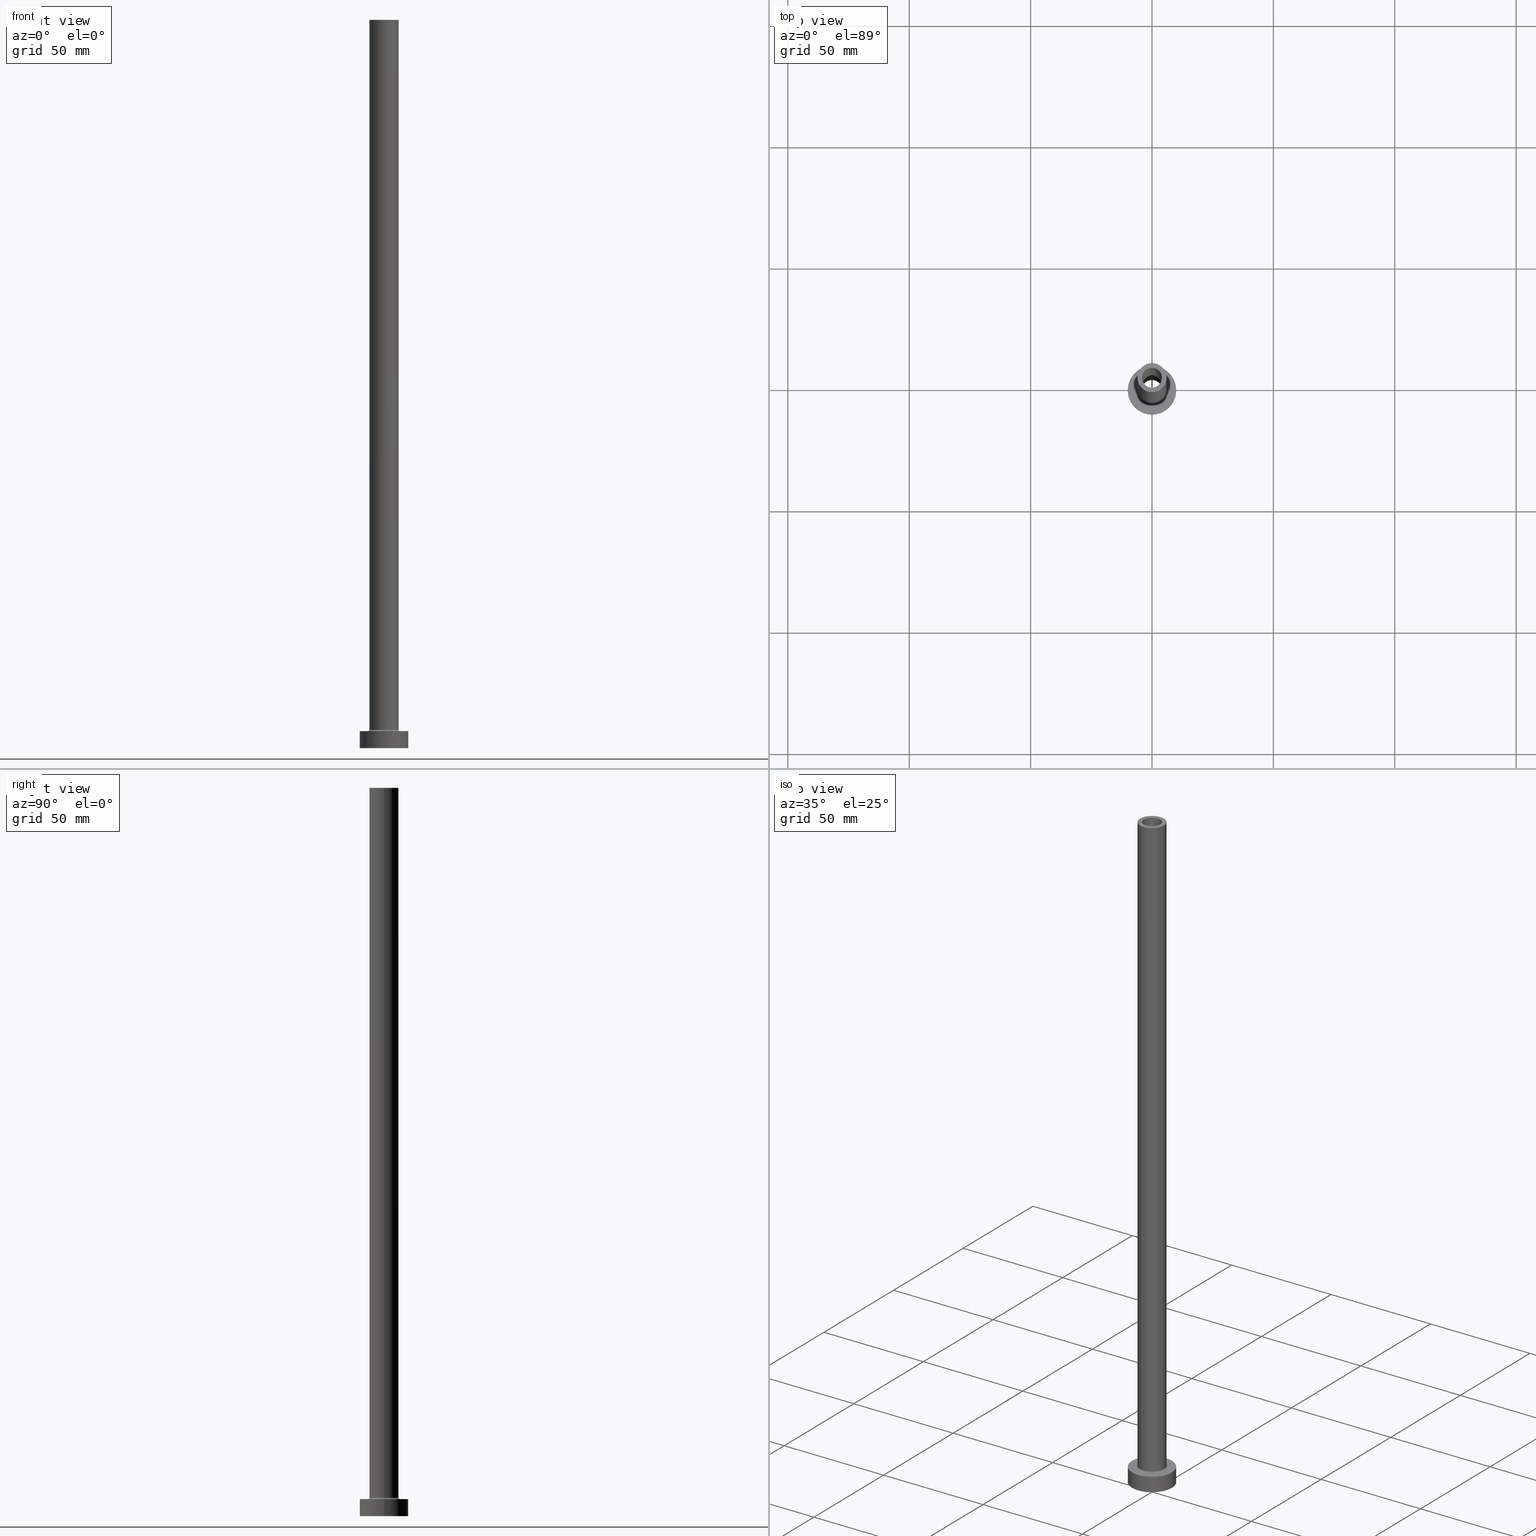
[diagram: canonical four-view strip — front | top / right | iso, engineering-drawing reading convention]
A machine part, canonical four-view strip (front | top / right | iso — engineering-drawing reading convention). The complete STEP part file that produces these views, byte-faithful:
ISO-10303-21;
HEADER;
FILE_DESCRIPTION (( 'STEP AP203' ),
    '1' );
FILE_NAME ('ae99.STEP',
    '2023-02-13T07:40:03',
    ( '' ),
    ( '' ),
    'SwSTEP 2.0',
    'SolidWorks 2019',
    '' );
FILE_SCHEMA (( 'CONFIG_CONTROL_DESIGN' ));
ENDSEC;

DATA;
#1 = MECHANICAL_CONTEXT ( 'NONE', #113, 'mechanical' ) ;
#2 = CIRCLE ( 'NONE', #103, 10.00000000000000000 ) ;
#3 = ORIENTED_EDGE ( 'NONE', *, *, #306, .F. ) ;
#4 = DIRECTION ( 'NONE',  ( -0.000000000000000000, -0.000000000000000000, -1.000000000000000000 ) ) ;
#5 = DIRECTION ( 'NONE',  ( -0.000000000000000000, -0.000000000000000000, -1.000000000000000000 ) ) ;
#6 = VERTEX_POINT ( 'NONE', #71 ) ;
#7 = DIRECTION ( 'NONE',  ( -0.000000000000000000, -0.000000000000000000, -1.000000000000000000 ) ) ;
#8 = ADVANCED_FACE ( 'NONE', ( #422 ), #386, .T. ) ;
#9 = DIRECTION ( 'NONE',  ( 1.000000000000000000, 0.000000000000000000, 0.000000000000000000 ) ) ;
#10 = ADVANCED_FACE ( 'NONE', ( #182, #324 ), #147, .F. ) ;
#11 = PRODUCT_DEFINITION_FORMATION_WITH_SPECIFIED_SOURCE ( 'LIBOVOLN�', '', #278, .NOT_KNOWN. ) ;
#12 = AXIS2_PLACEMENT_3D ( 'NONE', #449, #136, #411 ) ;
#13 =( NAMED_UNIT ( * ) SI_UNIT ( $, .STERADIAN. ) SOLID_ANGLE_UNIT ( ) );
#14 = CARTESIAN_POINT ( 'NONE',  ( 6.000000000000000888, 7.347880794884120722E-16, 7.699999999999985079 ) ) ;
#15 = DIRECTION ( 'NONE',  ( 0.000000000000000000, 0.000000000000000000, -1.000000000000000000 ) ) ;
#16 = EDGE_CURVE ( 'NONE', #452, #321, #212, .T. ) ;
#17 = LINE ( 'NONE', #86, #261 ) ;
#18 = APPROVAL_DATE_TIME ( #454, #217 ) ;
#19 = AXIS2_PLACEMENT_3D ( 'NONE', #399, #304, #440 ) ;
#20 = CARTESIAN_POINT ( 'NONE',  ( 0.000000000000000000, 0.000000000000000000, 0.000000000000000000 ) ) ;
#21 = DIRECTION ( 'NONE',  ( -1.000000000000000000, 0.000000000000000000, 0.000000000000000000 ) ) ;
#22 = DATE_TIME_ROLE ( 'classification_date' ) ;
#23 = EDGE_CURVE ( 'NONE', #6, #43, #442, .T. ) ;
#24 = EDGE_LOOP ( 'NONE', ( #143, #381, #283, #162 ) ) ;
#25 = ADVANCED_FACE ( 'NONE', ( #194, #26 ), #169, .T. ) ;
#26 = FACE_OUTER_BOUND ( 'NONE', #296, .T. ) ;
#27 = CARTESIAN_POINT ( 'NONE',  ( -10.00000000000000000, 0.000000000000000000, 0.000000000000000000 ) ) ;
#28 = EDGE_LOOP ( 'NONE', ( #280, #67 ) ) ;
#29 = CIRCLE ( 'NONE', #322, 4.250000000000000000 ) ;
#30 = APPROVAL_STATUS ( 'not_yet_approved' ) ;
#31 = AXIS2_PLACEMENT_3D ( 'NONE', #135, #191, #361 ) ;
#32 = ADVANCED_FACE ( 'NONE', ( #373 ), #257, .F. ) ;
#33 = EDGE_CURVE ( 'NONE', #347, #274, #377, .T. ) ;
#34 = EDGE_LOOP ( 'NONE', ( #417, #253 ) ) ;
#35 = AXIS2_PLACEMENT_3D ( 'NONE', #360, #15, #299 ) ;
#36 = CIRCLE ( 'NONE', #126, 0.7000000000000000666 ) ;
#37 = VECTOR ( 'NONE', #236, 1000.000000000000000 ) ;
#38 = DIRECTION ( 'NONE',  ( -1.000000000000000000, 0.000000000000000000, 0.000000000000000000 ) ) ;
#39 = AXIS2_PLACEMENT_3D ( 'NONE', #425, #167, #277 ) ;
#40 = DIRECTION ( 'NONE',  ( 1.000000000000000000, 0.000000000000000000, 0.000000000000000000 ) ) ;
#41 = DIRECTION ( 'NONE',  ( -1.000000000000000000, 0.000000000000000000, 0.000000000000000000 ) ) ;
#42 = APPLICATION_PROTOCOL_DEFINITION ( 'international standard', 'config_control_design', 1994, #113 ) ;
#43 = VERTEX_POINT ( 'NONE', #279 ) ;
#44 = LOCAL_TIME ( 8, 40, 3.000000000000000000, #202 ) ;
#45 = ORIENTED_EDGE ( 'NONE', *, *, #368, .F. ) ;
#46 = DIRECTION ( 'NONE',  ( 1.000000000000000000, 0.000000000000000000, 0.000000000000000000 ) ) ;
#47 = DIRECTION ( 'NONE',  ( -0.000000000000000000, -0.000000000000000000, -1.000000000000000000 ) ) ;
#48 = DIRECTION ( 'NONE',  ( 0.000000000000000000, 0.000000000000000000, 1.000000000000000000 ) ) ;
#49 = ORIENTED_EDGE ( 'NONE', *, *, #342, .T. ) ;
#50 = PERSON_AND_ORGANIZATION_ROLE ( 'creator' ) ;
#51 = AXIS2_PLACEMENT_3D ( 'NONE', #116, #109, #426 ) ;
#52 = CARTESIAN_POINT ( 'NONE',  ( 0.000000000000000000, 0.000000000000000000, 0.000000000000000000 ) ) ;
#53 = PERSON_AND_ORGANIZATION_ROLE ( 'design_supplier' ) ;
#54 = FACE_BOUND ( 'NONE', #28, .T. ) ;
#55 = CARTESIAN_POINT ( 'NONE',  ( -4.250000000000000000, 0.000000000000000000, 0.000000000000000000 ) ) ;
#56 = AXIS2_PLACEMENT_3D ( 'NONE', #294, #431, #9 ) ;
#57 = DIRECTION ( 'NONE',  ( 0.000000000000000000, 0.000000000000000000, 1.000000000000000000 ) ) ;
#58 = CC_DESIGN_PERSON_AND_ORGANIZATION_ASSIGNMENT ( #164, #50, ( #11 ) ) ;
#59 = AXIS2_PLACEMENT_3D ( 'NONE', #441, #131, #249 ) ;
#60 = ORIENTED_EDGE ( 'NONE', *, *, #165, .F. ) ;
#61 = ORIENTED_EDGE ( 'NONE', *, *, #450, .F. ) ;
#62 = CALENDAR_DATE ( 2023, 13, 2 ) ;
#63 = ORIENTED_EDGE ( 'NONE', *, *, #146, .F. ) ;
#64 = VERTEX_POINT ( 'NONE', #369 ) ;
#65 = VERTEX_POINT ( 'NONE', #338 ) ;
#66 = COORDINATED_UNIVERSAL_TIME_OFFSET ( 1, 0, .AHEAD. ) ;
#67 = ORIENTED_EDGE ( 'NONE', *, *, #387, .F. ) ;
#68 = VERTEX_POINT ( 'NONE', #55 ) ;
#69 = CARTESIAN_POINT ( 'NONE',  ( 0.000000000000000000, 0.000000000000000000, 300.0000000000000000 ) ) ;
#70 = VERTEX_POINT ( 'NONE', #241 ) ;
#71 = CARTESIAN_POINT ( 'NONE',  ( 4.250000000000000000, 5.204748896376250699E-16, 255.0000000000000000 ) ) ;
#72 = EDGE_CURVE ( 'NONE', #396, #258, #170, .T. ) ;
#73 = CARTESIAN_POINT ( 'NONE',  ( -10.00000000000000000, 0.000000000000000000, 7.000000000000000000 ) ) ;
#74 = SECURITY_CLASSIFICATION ( '', '', #272 ) ;
#75 = CYLINDRICAL_SURFACE ( 'NONE', #302, 10.00000000000000000 ) ;
#76 = CARTESIAN_POINT ( 'NONE',  ( -4.099999999999999645, 0.000000000000000000, 255.0000000000000000 ) ) ;
#77 = VECTOR ( 'NONE', #435, 1000.000000000000000 ) ;
#78 = CYLINDRICAL_SURFACE ( 'NONE', #35, 4.250000000000000000 ) ;
#79 = EDGE_CURVE ( 'NONE', #274, #347, #224, .T. ) ;
#80 = AXIS2_PLACEMENT_3D ( 'NONE', #219, #48, #190 ) ;
#81 = CLOSED_SHELL ( 'NONE', ( #107, #270, #32, #395, #398, #260, #25, #10, #8, #286, #443, #142, #233, #206 ) ) ;
#82 = EDGE_LOOP ( 'NONE', ( #456, #172, #352, #63 ) ) ;
#83 = LINE ( 'NONE', #376, #37 ) ;
#84 = CYLINDRICAL_SURFACE ( 'NONE', #59, 10.00000000000000000 ) ;
#85 = APPROVAL_DATE_TIME ( #415, #285 ) ;
#86 = CARTESIAN_POINT ( 'NONE',  ( -6.000000000000000888, 0.000000000000000000, 300.0000000000000000 ) ) ;
#87 = FACE_OUTER_BOUND ( 'NONE', #319, .T. ) ;
#88 = DIRECTION ( 'NONE',  ( 0.000000000000000000, 0.000000000000000000, 1.000000000000000000 ) ) ;
#89 = CYLINDRICAL_SURFACE ( 'NONE', #153, 6.000000000000000888 ) ;
#90 = DIRECTION ( 'NONE',  ( 0.000000000000000000, 0.000000000000000000, 1.000000000000000000 ) ) ;
#91 = VECTOR ( 'NONE', #326, 1000.000000000000000 ) ;
#92 = EDGE_CURVE ( 'NONE', #43, #68, #291, .T. ) ;
#93 = CIRCLE ( 'NONE', #359, 6.000000000000000888 ) ;
#94 = PERSON_AND_ORGANIZATION ( #410, #364 ) ;
#95 = DIRECTION ( 'NONE',  ( 0.000000000000000000, 0.000000000000000000, -1.000000000000000000 ) ) ;
#96 = ORIENTED_EDGE ( 'NONE', *, *, #72, .F. ) ;
#97 = ORIENTED_EDGE ( 'NONE', *, *, #368, .T. ) ;
#98 = DIRECTION ( 'NONE',  ( 1.000000000000000000, 0.000000000000000000, 0.000000000000000000 ) ) ;
#99 = CALENDAR_DATE ( 2023, 13, 2 ) ;
#100 =( LENGTH_UNIT ( ) NAMED_UNIT ( * ) SI_UNIT ( .MILLI., .METRE. ) );
#101 = APPROVAL_STATUS ( 'not_yet_approved' ) ;
#102 = DIRECTION ( 'NONE',  ( 1.000000000000000000, 0.000000000000000000, 0.000000000000000000 ) ) ;
#103 = AXIS2_PLACEMENT_3D ( 'NONE', #227, #192, #157 ) ;
#104 = FACE_OUTER_BOUND ( 'NONE', #82, .T. ) ;
#105 = ORIENTED_EDGE ( 'NONE', *, *, #16, .T. ) ;
#106 = CARTESIAN_POINT ( 'NONE',  ( 0.000000000000000000, 0.000000000000000000, 255.0000000000000000 ) ) ;
#107 = ADVANCED_FACE ( 'NONE', ( #118 ), #215, .F. ) ;
#108 = PRODUCT_DEFINITION_SHAPE ( 'NONE', 'NONE',  #323 ) ;
#109 = DIRECTION ( 'NONE',  ( 0.000000000000000000, 0.000000000000000000, 1.000000000000000000 ) ) ;
#110 = ORIENTED_EDGE ( 'NONE', *, *, #92, .F. ) ;
#111 = CIRCLE ( 'NONE', #19, 4.099999999999999645 ) ;
#112 = AXIS2_PLACEMENT_3D ( 'NONE', #238, #90, #229 ) ;
#113 = APPLICATION_CONTEXT ( 'configuration controlled 3d designs of mechanical parts and assemblies' ) ;
#114 = DIRECTION ( 'NONE',  ( 0.000000000000000000, 0.000000000000000000, 1.000000000000000000 ) ) ;
#115 = ORIENTED_EDGE ( 'NONE', *, *, #366, .F. ) ;
#116 = CARTESIAN_POINT ( 'NONE',  ( 0.000000000000000000, 0.000000000000000000, 255.0000000000000000 ) ) ;
#117 = EDGE_CURVE ( 'NONE', #274, #385, #337, .T. ) ;
#118 = FACE_OUTER_BOUND ( 'NONE', #166, .T. ) ;
#119 = ORIENTED_EDGE ( 'NONE', *, *, #130, .F. ) ;
#120 = PERSON_AND_ORGANIZATION ( #410, #364 ) ;
#121 = AXIS2_PLACEMENT_3D ( 'NONE', #106, #316, #414 ) ;
#122 = DIRECTION ( 'NONE',  ( 1.000000000000000000, 0.000000000000000000, 0.000000000000000000 ) ) ;
#123 = PRODUCT_RELATED_PRODUCT_CATEGORY ( 'detail', '', ( #278 ) ) ;
#124 = LINE ( 'NONE', #266, #91 ) ;
#125 = LINE ( 'NONE', #328, #77 ) ;
#126 = AXIS2_PLACEMENT_3D ( 'NONE', #183, #184, #209 ) ;
#127 = AXIS2_PLACEMENT_3D ( 'NONE', #365, #197, #404 ) ;
#128 = EDGE_LOOP ( 'NONE', ( #339, #349, #207, #213 ) ) ;
#129 = FACE_OUTER_BOUND ( 'NONE', #336, .T. ) ;
#130 = EDGE_CURVE ( 'NONE', #321, #452, #309, .T. ) ;
#131 = DIRECTION ( 'NONE',  ( -0.000000000000000000, -0.000000000000000000, -1.000000000000000000 ) ) ;
#132 = PERSON_AND_ORGANIZATION ( #410, #364 ) ;
#133 = DIRECTION ( 'NONE',  ( 0.000000000000000000, 0.000000000000000000, 1.000000000000000000 ) ) ;
#134 = APPROVAL_PERSON_ORGANIZATION ( #132, #217, #163 ) ;
#135 = CARTESIAN_POINT ( 'NONE',  ( 0.000000000000000000, 0.000000000000000000, 7.699999999999985079 ) ) ;
#136 = DIRECTION ( 'NONE',  ( 0.000000000000000000, 0.000000000000000000, 1.000000000000000000 ) ) ;
#137 = CYLINDRICAL_SURFACE ( 'NONE', #312, 4.250000000000000000 ) ;
#138 = VERTEX_POINT ( 'NONE', #300 ) ;
#139 = CARTESIAN_POINT ( 'NONE',  ( 0.000000000000000000, 0.000000000000000000, 300.0000000000000000 ) ) ;
#140 = ORIENTED_EDGE ( 'NONE', *, *, #145, .T. ) ;
#141 = CC_DESIGN_SECURITY_CLASSIFICATION ( #74, ( #11 ) ) ;
#142 = ADVANCED_FACE ( 'NONE', ( #87 ), #78, .F. ) ;
#143 = ORIENTED_EDGE ( 'NONE', *, *, #358, .F. ) ;
#144 = CARTESIAN_POINT ( 'NONE',  ( 0.000000000000000000, 0.000000000000000000, 7.000000000000000000 ) ) ;
#145 = EDGE_CURVE ( 'NONE', #70, #68, #125, .T. ) ;
#146 = EDGE_CURVE ( 'NONE', #315, #385, #392, .T. ) ;
#147 = PLANE ( 'NONE',  #39 ) ;
#148 = DIRECTION ( 'NONE',  ( 1.000000000000000000, 0.000000000000000000, 0.000000000000000000 ) ) ;
#149 = UNCERTAINTY_MEASURE_WITH_UNIT (LENGTH_MEASURE( 1.000000000000000082E-05 ), #100, 'distance_accuracy_value', 'NONE');
#150 = ORIENTED_EDGE ( 'NONE', *, *, #262, .T. ) ;
#151 = DIRECTION ( 'NONE',  ( -1.000000000000000000, 0.000000000000000000, 0.000000000000000000 ) ) ;
#152 = CC_DESIGN_PERSON_AND_ORGANIZATION_ASSIGNMENT ( #282, #239, ( #323 ) ) ;
#153 = AXIS2_PLACEMENT_3D ( 'NONE', #228, #196, #21 ) ;
#154 = ORIENTED_EDGE ( 'NONE', *, *, #351, .F. ) ;
#155 = FACE_OUTER_BOUND ( 'NONE', #444, .T. ) ;
#156 = APPROVAL_ROLE ( '' ) ;
#157 = DIRECTION ( 'NONE',  ( 1.000000000000000000, 0.000000000000000000, 0.000000000000000000 ) ) ;
#158 = EDGE_CURVE ( 'NONE', #64, #274, #295, .T. ) ;
#159 = LOCAL_TIME ( 8, 40, 3.000000000000000000, #175 ) ;
#160 = CARTESIAN_POINT ( 'NONE',  ( 6.700000000000001066, 0.000000000000000000, 6.999999999999992006 ) ) ;
#161 = DIRECTION ( 'NONE',  ( -0.000000000000000000, -0.000000000000000000, -1.000000000000000000 ) ) ;
#162 = ORIENTED_EDGE ( 'NONE', *, *, #216, .F. ) ;
#163 = APPROVAL_ROLE ( '' ) ;
#164 = PERSON_AND_ORGANIZATION ( #410, #364 ) ;
#165 = EDGE_CURVE ( 'NONE', #138, #396, #124, .T. ) ;
#166 = EDGE_LOOP ( 'NONE', ( #246, #218, #3, #408 ) ) ;
#167 = DIRECTION ( 'NONE',  ( 0.000000000000000000, 0.000000000000000000, 1.000000000000000000 ) ) ;
#168 = APPROVAL_PERSON_ORGANIZATION ( #344, #285, #156 ) ;
#169 = PLANE ( 'NONE',  #112 ) ;
#170 = CIRCLE ( 'NONE', #430, 4.099999999999999645 ) ;
#171 = EDGE_LOOP ( 'NONE', ( #455, #372 ) ) ;
#172 = ORIENTED_EDGE ( 'NONE', *, *, #79, .F. ) ;
#173 = DATE_AND_TIME ( #62, #330 ) ;
#174 = ORIENTED_EDGE ( 'NONE', *, *, #366, .T. ) ;
#175 = COORDINATED_UNIVERSAL_TIME_OFFSET ( 1, 0, .AHEAD. ) ;
#176 = CARTESIAN_POINT ( 'NONE',  ( 0.000000000000000000, 0.000000000000000000, 255.0000000000000000 ) ) ;
#177 = CC_DESIGN_PERSON_AND_ORGANIZATION_ASSIGNMENT ( #94, #200, ( #74 ) ) ;
#178 = APPROVAL_STATUS ( 'not_yet_approved' ) ;
#179 = DIRECTION ( 'NONE',  ( 0.000000000000000000, 0.000000000000000000, -1.000000000000000000 ) ) ;
#180 = CIRCLE ( 'NONE', #409, 6.700000000000001066 ) ;
#181 = ORIENTED_EDGE ( 'NONE', *, *, #117, .F. ) ;
#182 = FACE_BOUND ( 'NONE', #223, .T. ) ;
#183 = CARTESIAN_POINT ( 'NONE',  ( -6.700000000000001066, 8.205133554287267548E-16, 7.699999999999985079 ) ) ;
#184 = DIRECTION ( 'NONE',  ( 1.224646799147353207E-16, 1.000000000000000000, -0.000000000000000000 ) ) ;
#185 = CARTESIAN_POINT ( 'NONE',  ( 0.000000000000000000, 0.000000000000000000, 7.000000000000000000 ) ) ;
#186 = FACE_OUTER_BOUND ( 'NONE', #389, .T. ) ;
#187 = AXIS2_PLACEMENT_3D ( 'NONE', #144, #114, #148 ) ;
#188 = EDGE_CURVE ( 'NONE', #459, #138, #320, .T. ) ;
#189 = DIRECTION ( 'NONE',  ( 0.000000000000000000, 0.000000000000000000, 1.000000000000000000 ) ) ;
#190 = DIRECTION ( 'NONE',  ( 1.000000000000000000, 0.000000000000000000, 0.000000000000000000 ) ) ;
#191 = DIRECTION ( 'NONE',  ( 0.000000000000000000, 0.000000000000000000, 1.000000000000000000 ) ) ;
#192 = DIRECTION ( 'NONE',  ( 0.000000000000000000, 0.000000000000000000, 1.000000000000000000 ) ) ;
#193 = CARTESIAN_POINT ( 'NONE',  ( 0.000000000000000000, 0.000000000000000000, 255.0000000000000000 ) ) ;
#194 = FACE_BOUND ( 'NONE', #34, .T. ) ;
#195 = CIRCLE ( 'NONE', #121, 4.250000000000000000 ) ;
#196 = DIRECTION ( 'NONE',  ( -0.000000000000000000, -0.000000000000000000, -1.000000000000000000 ) ) ;
#197 = DIRECTION ( 'NONE',  ( 0.000000000000000000, 0.000000000000000000, 1.000000000000000000 ) ) ;
#198 = ORIENTED_EDGE ( 'NONE', *, *, #354, .F. ) ;
#199 = CC_DESIGN_PERSON_AND_ORGANIZATION_ASSIGNMENT ( #436, #53, ( #11 ) ) ;
#200 = PERSON_AND_ORGANIZATION_ROLE ( 'classification_officer' ) ;
#201 = DATE_TIME_ROLE ( 'creation_date' ) ;
#202 = COORDINATED_UNIVERSAL_TIME_OFFSET ( 1, 0, .AHEAD. ) ;
#203 = COORDINATED_UNIVERSAL_TIME_OFFSET ( 1, 0, .AHEAD. ) ;
#204 = ORIENTED_EDGE ( 'NONE', *, *, #158, .T. ) ;
#205 = ORIENTED_EDGE ( 'NONE', *, *, #317, .F. ) ;
#206 = ADVANCED_FACE ( 'NONE', ( #186 ), #252, .F. ) ;
#207 = ORIENTED_EDGE ( 'NONE', *, *, #92, .T. ) ;
#208 = VERTEX_POINT ( 'NONE', #73 ) ;
#209 = DIRECTION ( 'NONE',  ( -1.000000000000000000, 1.224646799147353454E-16, 0.000000000000000000 ) ) ;
#210 = AXIS2_PLACEMENT_3D ( 'NONE', #243, #382, #251 ) ;
#211 = CIRCLE ( 'NONE', #187, 10.00000000000000000 ) ;
#212 = CIRCLE ( 'NONE', #12, 10.00000000000000000 ) ;
#213 = ORIENTED_EDGE ( 'NONE', *, *, #145, .F. ) ;
#214 = CARTESIAN_POINT ( 'NONE',  ( 0.000000000000000000, 0.000000000000000000, 300.0000000000000000 ) ) ;
#215 = CYLINDRICAL_SURFACE ( 'NONE', #230, 4.099999999999999645 ) ;
#216 = EDGE_CURVE ( 'NONE', #208, #452, #289, .T. ) ;
#217 = APPROVAL ( #101, 'NEUR�EN�' ) ;
#218 = ORIENTED_EDGE ( 'NONE', *, *, #165, .T. ) ;
#219 = CARTESIAN_POINT ( 'NONE',  ( 0.000000000000000000, 0.000000000000000000, 0.000000000000000000 ) ) ;
#220 = EDGE_CURVE ( 'NONE', #347, #315, #36, .T. ) ;
#221 = DIRECTION ( 'NONE',  ( -1.000000000000000000, 0.000000000000000000, 0.000000000000000000 ) ) ;
#222 = APPROVAL_PERSON_ORGANIZATION ( #447, #232, #412 ) ;
#223 = EDGE_LOOP ( 'NONE', ( #205, #110 ) ) ;
#224 = CIRCLE ( 'NONE', #31, 6.000000000000000888 ) ;
#225 = CARTESIAN_POINT ( 'NONE',  ( 10.00000000000000000, 1.224646799147353256E-15, 7.000000000000000000 ) ) ;
#226 = CARTESIAN_POINT ( 'NONE',  ( 6.000000000000000888, 7.347880794884120722E-16, 300.0000000000000000 ) ) ;
#227 = CARTESIAN_POINT ( 'NONE',  ( 0.000000000000000000, 0.000000000000000000, 7.000000000000000000 ) ) ;
#228 = CARTESIAN_POINT ( 'NONE',  ( 0.000000000000000000, 0.000000000000000000, 300.0000000000000000 ) ) ;
#229 = DIRECTION ( 'NONE',  ( 1.000000000000000000, 0.000000000000000000, -0.000000000000000000 ) ) ;
#230 = AXIS2_PLACEMENT_3D ( 'NONE', #402, #264, #221 ) ;
#231 = CC_DESIGN_APPROVAL ( #232, ( #323 ) ) ;
#232 = APPROVAL ( #178, 'NEUR�EN�' ) ;
#233 = ADVANCED_FACE ( 'NONE', ( #390, #325 ), #293, .F. ) ;
#234 = COORDINATED_UNIVERSAL_TIME_OFFSET ( 1, 0, .AHEAD. ) ;
#235 = ORIENTED_EDGE ( 'NONE', *, *, #220, .T. ) ;
#236 = DIRECTION ( 'NONE',  ( 0.000000000000000000, 0.000000000000000000, -1.000000000000000000 ) ) ;
#237 = EDGE_LOOP ( 'NONE', ( #61, #318, #362, #105 ) ) ;
#238 = CARTESIAN_POINT ( 'NONE',  ( 0.000000000000000000, 0.000000000000000000, 7.000000000000000000 ) ) ;
#239 = PERSON_AND_ORGANIZATION_ROLE ( 'creator' ) ;
#240 = ORIENTED_EDGE ( 'NONE', *, *, #33, .T. ) ;
#241 = CARTESIAN_POINT ( 'NONE',  ( -4.250000000000000000, 0.000000000000000000, 255.0000000000000000 ) ) ;
#242 = ORIENTED_EDGE ( 'NONE', *, *, #79, .T. ) ;
#243 = CARTESIAN_POINT ( 'NONE',  ( 0.000000000000000000, 0.000000000000000000, 7.699999999999985079 ) ) ;
#244 = CC_DESIGN_APPROVAL ( #285, ( #11 ) ) ;
#245 = CALENDAR_DATE ( 2023, 13, 2 ) ;
#246 = ORIENTED_EDGE ( 'NONE', *, *, #188, .T. ) ;
#247 = DATE_AND_TIME ( #416, #355 ) ;
#248 = EDGE_LOOP ( 'NONE', ( #154, #314 ) ) ;
#249 = DIRECTION ( 'NONE',  ( -1.000000000000000000, 0.000000000000000000, 0.000000000000000000 ) ) ;
#250 = APPROVAL_DATE_TIME ( #379, #232 ) ;
#251 = DIRECTION ( 'NONE',  ( 1.000000000000000000, 0.000000000000000000, 0.000000000000000000 ) ) ;
#252 = CYLINDRICAL_SURFACE ( 'NONE', #400, 4.099999999999999645 ) ;
#253 = ORIENTED_EDGE ( 'NONE', *, *, #146, .T. ) ;
#254 = AXIS2_PLACEMENT_3D ( 'NONE', #331, #259, #327 ) ;
#255 = DIRECTION ( 'NONE',  ( 1.000000000000000000, 0.000000000000000000, 0.000000000000000000 ) ) ;
#256 = CC_DESIGN_APPROVAL ( #217, ( #74 ) ) ;
#257 = TOROIDAL_SURFACE ( 'NONE', #127, 6.700000000000001066, 0.6999999999999999556 ) ;
#258 = VERTEX_POINT ( 'NONE', #76 ) ;
#259 = DIRECTION ( 'NONE',  ( 0.000000000000000000, -1.000000000000000000, 0.000000000000000000 ) ) ;
#260 = ADVANCED_FACE ( 'NONE', ( #458 ), #75, .T. ) ;
#261 = VECTOR ( 'NONE', #367, 1000.000000000000000 ) ;
#262 = EDGE_CURVE ( 'NONE', #208, #378, #211, .T. ) ;
#263 = DIRECTION ( 'NONE',  ( 1.000000000000000000, 0.000000000000000000, 0.000000000000000000 ) ) ;
#264 = DIRECTION ( 'NONE',  ( 0.000000000000000000, 0.000000000000000000, -1.000000000000000000 ) ) ;
#265 = CARTESIAN_POINT ( 'NONE',  ( 0.000000000000000000, 0.000000000000000000, 300.0000000000000000 ) ) ;
#266 = CARTESIAN_POINT ( 'NONE',  ( 4.099999999999999645, 5.021051876504146399E-16, 300.0000000000000000 ) ) ;
#267 = PLANE ( 'NONE',  #427 ) ;
#268 = CARTESIAN_POINT ( 'NONE',  ( 0.000000000000000000, 0.000000000000000000, 300.0000000000000000 ) ) ;
#269 = ADVANCED_BREP_SHAPE_REPRESENTATION ( 'ae99', ( #424, #80 ), #446 ) ;
#270 = ADVANCED_FACE ( 'NONE', ( #451 ), #137, .F. ) ;
#271 = DIRECTION ( 'NONE',  ( 1.000000000000000000, 0.000000000000000000, 0.000000000000000000 ) ) ;
#272 = SECURITY_CLASSIFICATION_LEVEL ( 'unclassified' ) ;
#273 = CARTESIAN_POINT ( 'NONE',  ( 0.000000000000000000, 0.000000000000000000, 255.0000000000000000 ) ) ;
#274 = VERTEX_POINT ( 'NONE', #14 ) ;
#275 = LOCAL_TIME ( 8, 40, 3.000000000000000000, #203 ) ;
#276 = CARTESIAN_POINT ( 'NONE',  ( -6.000000000000000888, 0.000000000000000000, 7.699999999999985079 ) ) ;
#277 = DIRECTION ( 'NONE',  ( 1.000000000000000000, 0.000000000000000000, -0.000000000000000000 ) ) ;
#278 = PRODUCT ( 'ae99', 'ae99', '', ( #1 ) ) ;
#279 = CARTESIAN_POINT ( 'NONE',  ( 4.250000000000000000, 5.204748896376250699E-16, 0.000000000000000000 ) ) ;
#280 = ORIENTED_EDGE ( 'NONE', *, *, #188, .F. ) ;
#281 = AXIS2_PLACEMENT_3D ( 'NONE', #52, #189, #391 ) ;
#282 = PERSON_AND_ORGANIZATION ( #410, #364 ) ;
#283 = ORIENTED_EDGE ( 'NONE', *, *, #130, .T. ) ;
#284 = CARTESIAN_POINT ( 'NONE',  ( -10.00000000000000000, 0.000000000000000000, 7.000000000000000000 ) ) ;
#285 = APPROVAL ( #30, 'NEUR�EN�' ) ;
#286 = ADVANCED_FACE ( 'NONE', ( #54, #155 ), #267, .T. ) ;
#287 = ORIENTED_EDGE ( 'NONE', *, *, #158, .F. ) ;
#288 = DIRECTION ( 'NONE',  ( 0.000000000000000000, 0.000000000000000000, 1.000000000000000000 ) ) ;
#289 = LINE ( 'NONE', #284, #343 ) ;
#290 = VECTOR ( 'NONE', #348, 1000.000000000000000 ) ;
#291 = CIRCLE ( 'NONE', #419, 4.250000000000000000 ) ;
#292 = ORIENTED_EDGE ( 'NONE', *, *, #23, .F. ) ;
#293 = PLANE ( 'NONE',  #51 ) ;
#294 = CARTESIAN_POINT ( 'NONE',  ( 0.000000000000000000, 0.000000000000000000, 7.000000000000000000 ) ) ;
#295 = LINE ( 'NONE', #226, #297 ) ;
#296 = EDGE_LOOP ( 'NONE', ( #150, #434 ) ) ;
#297 = VECTOR ( 'NONE', #5, 1000.000000000000000 ) ;
#298 = CIRCLE ( 'NONE', #438, 6.000000000000000888 ) ;
#299 = DIRECTION ( 'NONE',  ( -1.000000000000000000, 0.000000000000000000, 0.000000000000000000 ) ) ;
#300 = CARTESIAN_POINT ( 'NONE',  ( 4.099999999999999645, 5.021051876504146399E-16, 300.0000000000000000 ) ) ;
#301 = DIRECTION ( 'NONE',  ( 0.000000000000000000, 0.000000000000000000, 1.000000000000000000 ) ) ;
#302 = AXIS2_PLACEMENT_3D ( 'NONE', #428, #460, #41 ) ;
#303 = ORIENTED_EDGE ( 'NONE', *, *, #437, .F. ) ;
#304 = DIRECTION ( 'NONE',  ( 0.000000000000000000, 0.000000000000000000, 1.000000000000000000 ) ) ;
#305 = SHAPE_DEFINITION_REPRESENTATION ( #108, #269 ) ;
#306 = EDGE_CURVE ( 'NONE', #258, #396, #401, .T. ) ;
#307 = CARTESIAN_POINT ( 'NONE',  ( 4.099999999999999645, 5.021051876504146399E-16, 255.0000000000000000 ) ) ;
#308 = CARTESIAN_POINT ( 'NONE',  ( 0.000000000000000000, 0.000000000000000000, 7.699999999999985079 ) ) ;
#309 = CIRCLE ( 'NONE', #281, 10.00000000000000000 ) ;
#310 = PERSON_AND_ORGANIZATION_ROLE ( 'design_owner' ) ;
#311 = EDGE_LOOP ( 'NONE', ( #350, #235, #198, #181 ) ) ;
#312 = AXIS2_PLACEMENT_3D ( 'NONE', #457, #405, #332 ) ;
#313 = VECTOR ( 'NONE', #95, 1000.000000000000000 ) ;
#314 = ORIENTED_EDGE ( 'NONE', *, *, #421, .F. ) ;
#315 = VERTEX_POINT ( 'NONE', #335 ) ;
#316 = DIRECTION ( 'NONE',  ( 0.000000000000000000, 0.000000000000000000, 1.000000000000000000 ) ) ;
#317 = EDGE_CURVE ( 'NONE', #68, #43, #29, .T. ) ;
#318 = ORIENTED_EDGE ( 'NONE', *, *, #262, .F. ) ;
#319 = EDGE_LOOP ( 'NONE', ( #292, #374, #140, #384 ) ) ;
#320 = CIRCLE ( 'NONE', #432, 4.099999999999999645 ) ;
#321 = VERTEX_POINT ( 'NONE', #397 ) ;
#322 = AXIS2_PLACEMENT_3D ( 'NONE', #20, #161, #263 ) ;
#323 = PRODUCT_DEFINITION ( 'NEZN�M�', '', #11, #429 ) ;
#324 = FACE_OUTER_BOUND ( 'NONE', #329, .T. ) ;
#325 = FACE_OUTER_BOUND ( 'NONE', #248, .T. ) ;
#326 = DIRECTION ( 'NONE',  ( 0.000000000000000000, 0.000000000000000000, -1.000000000000000000 ) ) ;
#327 = DIRECTION ( 'NONE',  ( 0.000000000000000000, 0.000000000000000000, -1.000000000000000000 ) ) ;
#328 = CARTESIAN_POINT ( 'NONE',  ( -4.250000000000000000, 0.000000000000000000, 267.0208152801712913 ) ) ;
#329 = EDGE_LOOP ( 'NONE', ( #413, #119 ) ) ;
#330 = LOCAL_TIME ( 8, 40, 3.000000000000000000, #234 ) ;
#331 = CARTESIAN_POINT ( 'NONE',  ( 6.700000000000001066, 0.000000000000000000, 7.699999999999985079 ) ) ;
#332 = DIRECTION ( 'NONE',  ( -1.000000000000000000, 0.000000000000000000, 0.000000000000000000 ) ) ;
#333 = CC_DESIGN_DATE_AND_TIME_ASSIGNMENT ( #173, #22, ( #74 ) ) ;
#334 = AXIS2_PLACEMENT_3D ( 'NONE', #139, #353, #38 ) ;
#335 = CARTESIAN_POINT ( 'NONE',  ( -6.700000000000001066, 8.205133554287267548E-16, 6.999999999999992006 ) ) ;
#336 = EDGE_LOOP ( 'NONE', ( #115, #204, #242, #45 ) ) ;
#337 = CIRCLE ( 'NONE', #254, 0.7000000000000000666 ) ;
#338 = CARTESIAN_POINT ( 'NONE',  ( -6.000000000000000888, 0.000000000000000000, 300.0000000000000000 ) ) ;
#339 = ORIENTED_EDGE ( 'NONE', *, *, #351, .T. ) ;
#340 = LINE ( 'NONE', #375, #290 ) ;
#341 = CARTESIAN_POINT ( 'NONE',  ( 4.250000000000000000, 5.204748896376250699E-16, 267.0208152801712913 ) ) ;
#342 = EDGE_CURVE ( 'NONE', #459, #258, #83, .T. ) ;
#343 = VECTOR ( 'NONE', #4, 1000.000000000000000 ) ;
#344 = PERSON_AND_ORGANIZATION ( #410, #364 ) ;
#345 =( NAMED_UNIT ( * ) PLANE_ANGLE_UNIT ( ) SI_UNIT ( $, .RADIAN. ) );
#346 = CALENDAR_DATE ( 2023, 13, 2 ) ;
#347 = VERTEX_POINT ( 'NONE', #276 ) ;
#348 = DIRECTION ( 'NONE',  ( -0.000000000000000000, -0.000000000000000000, -1.000000000000000000 ) ) ;
#349 = ORIENTED_EDGE ( 'NONE', *, *, #23, .T. ) ;
#350 = ORIENTED_EDGE ( 'NONE', *, *, #33, .F. ) ;
#351 = EDGE_CURVE ( 'NONE', #70, #6, #407, .T. ) ;
#352 = ORIENTED_EDGE ( 'NONE', *, *, #117, .T. ) ;
#353 = DIRECTION ( 'NONE',  ( -0.000000000000000000, -0.000000000000000000, -1.000000000000000000 ) ) ;
#354 = EDGE_CURVE ( 'NONE', #385, #315, #180, .T. ) ;
#355 = LOCAL_TIME ( 8, 40, 3.000000000000000000, #66 ) ;
#356 = DIRECTION ( 'NONE',  ( 0.000000000000000000, 0.000000000000000000, 1.000000000000000000 ) ) ;
#357 = ORIENTED_EDGE ( 'NONE', *, *, #387, .T. ) ;
#358 = EDGE_CURVE ( 'NONE', #378, #208, #2, .T. ) ;
#359 = AXIS2_PLACEMENT_3D ( 'NONE', #69, #418, #102 ) ;
#360 = CARTESIAN_POINT ( 'NONE',  ( 0.000000000000000000, 0.000000000000000000, 267.0208152801712913 ) ) ;
#361 = DIRECTION ( 'NONE',  ( 1.000000000000000000, 0.000000000000000000, 0.000000000000000000 ) ) ;
#362 = ORIENTED_EDGE ( 'NONE', *, *, #216, .T. ) ;
#363 = CC_DESIGN_DATE_AND_TIME_ASSIGNMENT ( #247, #201, ( #323 ) ) ;
#364 = ORGANIZATION ( 'NEUR�EN�', 'NEUR�EN�', '' ) ;
#365 = CARTESIAN_POINT ( 'NONE',  ( 0.000000000000000000, 0.000000000000000000, 7.699999999999985079 ) ) ;
#366 = EDGE_CURVE ( 'NONE', #64, #65, #298, .T. ) ;
#367 = DIRECTION ( 'NONE',  ( -0.000000000000000000, -0.000000000000000000, -1.000000000000000000 ) ) ;
#368 = EDGE_CURVE ( 'NONE', #65, #347, #17, .T. ) ;
#369 = CARTESIAN_POINT ( 'NONE',  ( 6.000000000000000888, 7.347880794884120722E-16, 300.0000000000000000 ) ) ;
#370 = AXIS2_PLACEMENT_3D ( 'NONE', #193, #88, #122 ) ;
#371 = FACE_OUTER_BOUND ( 'NONE', #24, .T. ) ;
#372 = ORIENTED_EDGE ( 'NONE', *, *, #72, .T. ) ;
#373 = FACE_OUTER_BOUND ( 'NONE', #311, .T. ) ;
#374 = ORIENTED_EDGE ( 'NONE', *, *, #421, .T. ) ;
#375 = CARTESIAN_POINT ( 'NONE',  ( 10.00000000000000000, 1.224646799147353256E-15, 7.000000000000000000 ) ) ;
#376 = CARTESIAN_POINT ( 'NONE',  ( -4.099999999999999645, 0.000000000000000000, 300.0000000000000000 ) ) ;
#377 = CIRCLE ( 'NONE', #439, 6.000000000000000888 ) ;
#378 = VERTEX_POINT ( 'NONE', #225 ) ;
#379 = DATE_AND_TIME ( #99, #159 ) ;
#380 = APPLICATION_CONTEXT ( 'configuration controlled 3d designs of mechanical parts and assemblies' ) ;
#381 = ORIENTED_EDGE ( 'NONE', *, *, #450, .T. ) ;
#382 = DIRECTION ( 'NONE',  ( 0.000000000000000000, 0.000000000000000000, 1.000000000000000000 ) ) ;
#383 = CC_DESIGN_PERSON_AND_ORGANIZATION_ASSIGNMENT ( #120, #310, ( #278 ) ) ;
#384 = ORIENTED_EDGE ( 'NONE', *, *, #317, .T. ) ;
#385 = VERTEX_POINT ( 'NONE', #160 ) ;
#386 = CYLINDRICAL_SURFACE ( 'NONE', #334, 6.000000000000000888 ) ;
#387 = EDGE_CURVE ( 'NONE', #138, #459, #111, .T. ) ;
#388 = TOROIDAL_SURFACE ( 'NONE', #210, 6.700000000000001066, 0.6999999999999999556 ) ;
#389 = EDGE_LOOP ( 'NONE', ( #60, #357, #49, #96 ) ) ;
#390 = FACE_BOUND ( 'NONE', #171, .T. ) ;
#391 = DIRECTION ( 'NONE',  ( 1.000000000000000000, 0.000000000000000000, 0.000000000000000000 ) ) ;
#392 = CIRCLE ( 'NONE', #56, 6.700000000000001066 ) ;
#393 = DIRECTION ( 'NONE',  ( 1.000000000000000000, 0.000000000000000000, 0.000000000000000000 ) ) ;
#394 = AXIS2_PLACEMENT_3D ( 'NONE', #176, #288, #40 ) ;
#395 = ADVANCED_FACE ( 'NONE', ( #129 ), #89, .T. ) ;
#396 = VERTEX_POINT ( 'NONE', #307 ) ;
#397 = CARTESIAN_POINT ( 'NONE',  ( 10.00000000000000000, 1.224646799147353256E-15, 0.000000000000000000 ) ) ;
#398 = ADVANCED_FACE ( 'NONE', ( #371 ), #84, .T. ) ;
#399 = CARTESIAN_POINT ( 'NONE',  ( 0.000000000000000000, 0.000000000000000000, 300.0000000000000000 ) ) ;
#400 = AXIS2_PLACEMENT_3D ( 'NONE', #423, #179, #151 ) ;
#401 = CIRCLE ( 'NONE', #370, 4.099999999999999645 ) ;
#402 = CARTESIAN_POINT ( 'NONE',  ( 0.000000000000000000, 0.000000000000000000, 300.0000000000000000 ) ) ;
#403 = DIRECTION ( 'NONE',  ( 1.000000000000000000, 0.000000000000000000, -0.000000000000000000 ) ) ;
#404 = DIRECTION ( 'NONE',  ( 1.000000000000000000, 0.000000000000000000, 0.000000000000000000 ) ) ;
#405 = DIRECTION ( 'NONE',  ( 0.000000000000000000, 0.000000000000000000, -1.000000000000000000 ) ) ;
#406 = DIRECTION ( 'NONE',  ( 0.000000000000000000, 0.000000000000000000, 1.000000000000000000 ) ) ;
#407 = CIRCLE ( 'NONE', #394, 4.250000000000000000 ) ;
#408 = ORIENTED_EDGE ( 'NONE', *, *, #342, .F. ) ;
#409 = AXIS2_PLACEMENT_3D ( 'NONE', #185, #7, #393 ) ;
#410 = PERSON ( 'NEUR�EN�', 'NEUR�EN�', 'NEUR�EN�', ('NEUR�EN�'), ('NEUR�EN�'), ('NEUR�EN�') ) ;
#411 = DIRECTION ( 'NONE',  ( 1.000000000000000000, 0.000000000000000000, 0.000000000000000000 ) ) ;
#412 = APPROVAL_ROLE ( '' ) ;
#413 = ORIENTED_EDGE ( 'NONE', *, *, #16, .F. ) ;
#414 = DIRECTION ( 'NONE',  ( 1.000000000000000000, 0.000000000000000000, 0.000000000000000000 ) ) ;
#415 = DATE_AND_TIME ( #245, #275 ) ;
#416 = CALENDAR_DATE ( 2023, 13, 2 ) ;
#417 = ORIENTED_EDGE ( 'NONE', *, *, #354, .T. ) ;
#418 = DIRECTION ( 'NONE',  ( 0.000000000000000000, 0.000000000000000000, 1.000000000000000000 ) ) ;
#419 = AXIS2_PLACEMENT_3D ( 'NONE', #433, #47, #46 ) ;
#420 = APPLICATION_PROTOCOL_DEFINITION ( 'international standard', 'config_control_design', 1994, #380 ) ;
#421 = EDGE_CURVE ( 'NONE', #6, #70, #195, .T. ) ;
#422 = FACE_OUTER_BOUND ( 'NONE', #453, .T. ) ;
#423 = CARTESIAN_POINT ( 'NONE',  ( 0.000000000000000000, 0.000000000000000000, 300.0000000000000000 ) ) ;
#424 = MANIFOLD_SOLID_BREP ( 'Odebrat vysunut�m4', #81 ) ;
#425 = CARTESIAN_POINT ( 'NONE',  ( 0.000000000000000000, 0.000000000000000000, 0.000000000000000000 ) ) ;
#426 = DIRECTION ( 'NONE',  ( 1.000000000000000000, 0.000000000000000000, -0.000000000000000000 ) ) ;
#427 = AXIS2_PLACEMENT_3D ( 'NONE', #265, #57, #403 ) ;
#428 = CARTESIAN_POINT ( 'NONE',  ( 0.000000000000000000, 0.000000000000000000, 7.000000000000000000 ) ) ;
#429 = DESIGN_CONTEXT ( 'detailed design', #380, 'design' ) ;
#430 = AXIS2_PLACEMENT_3D ( 'NONE', #273, #406, #445 ) ;
#431 = DIRECTION ( 'NONE',  ( -0.000000000000000000, -0.000000000000000000, -1.000000000000000000 ) ) ;
#432 = AXIS2_PLACEMENT_3D ( 'NONE', #214, #356, #255 ) ;
#433 = CARTESIAN_POINT ( 'NONE',  ( 0.000000000000000000, 0.000000000000000000, 0.000000000000000000 ) ) ;
#434 = ORIENTED_EDGE ( 'NONE', *, *, #358, .T. ) ;
#435 = DIRECTION ( 'NONE',  ( 0.000000000000000000, 0.000000000000000000, -1.000000000000000000 ) ) ;
#436 = PERSON_AND_ORGANIZATION ( #410, #364 ) ;
#437 = EDGE_CURVE ( 'NONE', #65, #64, #93, .T. ) ;
#438 = AXIS2_PLACEMENT_3D ( 'NONE', #268, #301, #271 ) ;
#439 = AXIS2_PLACEMENT_3D ( 'NONE', #308, #133, #98 ) ;
#440 = DIRECTION ( 'NONE',  ( 1.000000000000000000, 0.000000000000000000, 0.000000000000000000 ) ) ;
#441 = CARTESIAN_POINT ( 'NONE',  ( 0.000000000000000000, 0.000000000000000000, 7.000000000000000000 ) ) ;
#442 = LINE ( 'NONE', #341, #313 ) ;
#443 = ADVANCED_FACE ( 'NONE', ( #104 ), #388, .F. ) ;
#444 = EDGE_LOOP ( 'NONE', ( #461, #174 ) ) ;
#445 = DIRECTION ( 'NONE',  ( 1.000000000000000000, 0.000000000000000000, 0.000000000000000000 ) ) ;
#446 =( GEOMETRIC_REPRESENTATION_CONTEXT ( 3 ) GLOBAL_UNCERTAINTY_ASSIGNED_CONTEXT ( ( #149 ) ) GLOBAL_UNIT_ASSIGNED_CONTEXT ( ( #100, #345, #13 ) ) REPRESENTATION_CONTEXT ( 'NONE', 'WORKASPACE' ) );
#447 = PERSON_AND_ORGANIZATION ( #410, #364 ) ;
#448 = CARTESIAN_POINT ( 'NONE',  ( -4.099999999999999645, 0.000000000000000000, 300.0000000000000000 ) ) ;
#449 = CARTESIAN_POINT ( 'NONE',  ( 0.000000000000000000, 0.000000000000000000, 0.000000000000000000 ) ) ;
#450 = EDGE_CURVE ( 'NONE', #378, #321, #340, .T. ) ;
#451 = FACE_OUTER_BOUND ( 'NONE', #128, .T. ) ;
#452 = VERTEX_POINT ( 'NONE', #27 ) ;
#453 = EDGE_LOOP ( 'NONE', ( #287, #303, #97, #240 ) ) ;
#454 = DATE_AND_TIME ( #346, #44 ) ;
#455 = ORIENTED_EDGE ( 'NONE', *, *, #306, .T. ) ;
#456 = ORIENTED_EDGE ( 'NONE', *, *, #220, .F. ) ;
#457 = CARTESIAN_POINT ( 'NONE',  ( 0.000000000000000000, 0.000000000000000000, 267.0208152801712913 ) ) ;
#458 = FACE_OUTER_BOUND ( 'NONE', #237, .T. ) ;
#459 = VERTEX_POINT ( 'NONE', #448 ) ;
#460 = DIRECTION ( 'NONE',  ( -0.000000000000000000, -0.000000000000000000, -1.000000000000000000 ) ) ;
#461 = ORIENTED_EDGE ( 'NONE', *, *, #437, .T. ) ;
ENDSEC;
END-ISO-10303-21;
